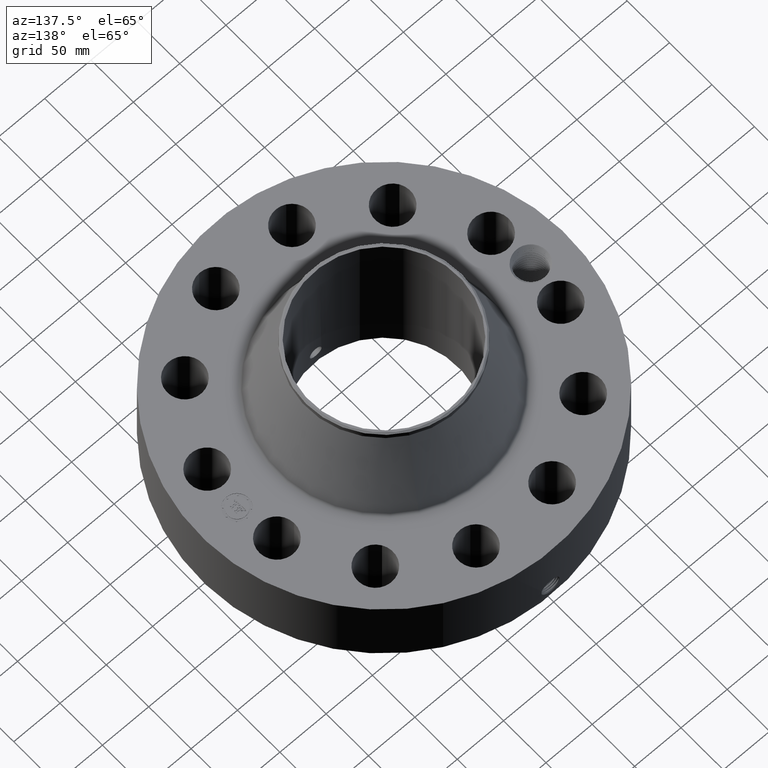
[diagram: clean part render]
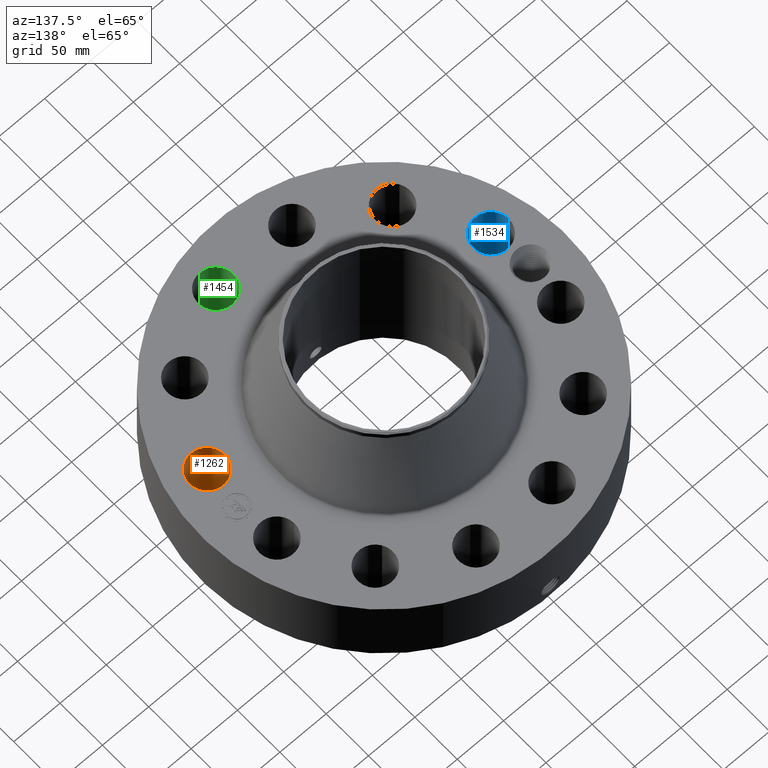
[diagram: same view with three faces highlighted in distinct colors, each labeled with its STEP entity id]
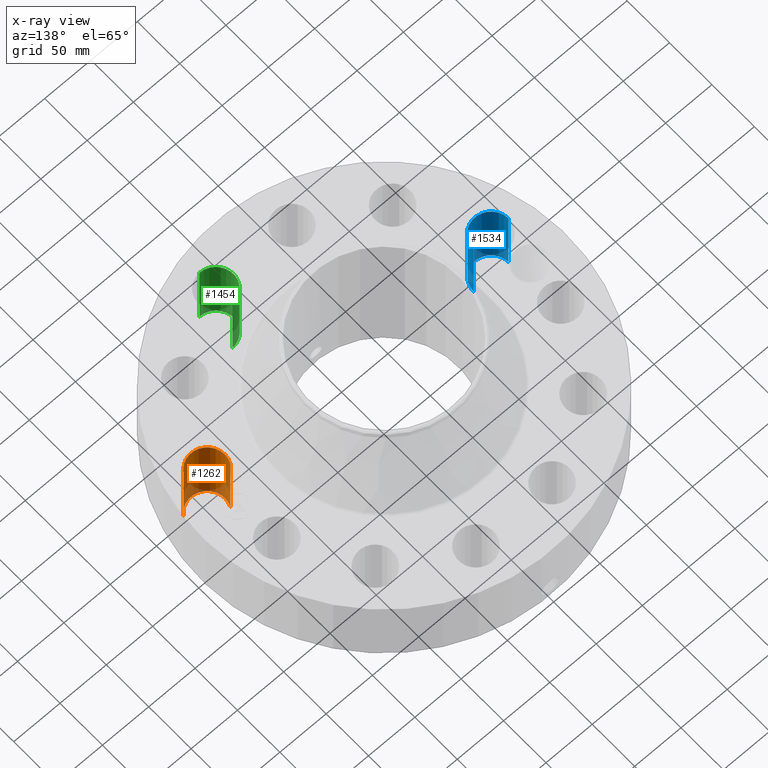
[diagram: x-ray of the same camera — body ghosted, the three highlighted faces saturated]
A machine part, auxiliary view with three faces highlighted in distinct colors.
The next image is the same camera in x-ray (body ghosted, the three faces saturated) — at least one of them is partly hidden behind the body in this view.
Their STEP definitions:

[orange] entity #1262 — the highlighted cylindrical surface (edge-blend (fillet) strip) has radius 19.05 mm, axis along (0, -0, -1).
#235=AXIS2_PLACEMENT_3D('Circle Axis2P3D',#233,#234,$) ;
#633=AXIS2_PLACEMENT_3D('Circle Axis2P3D',#631,#632,$) ;
#1244=AXIS2_PLACEMENT_3D('Cylinder Axis2P3D',#1241,#1242,#1243) ;
#233=CARTESIAN_POINT('Axis2P3D Location',(6.03703641433,-1.6176190319,0.250000000001)) ;
#237=CARTESIAN_POINT('Vertex',(6.69522333575,-1.97718818585,0.250000000001)) ;
#239=CARTESIAN_POINT('Vertex',(5.37884949291,-1.25804987794,0.250000000001)) ;
#626=CARTESIAN_POINT('Vertex',(5.37884949291,-1.25804987794,3.50000000001)) ;
#628=CARTESIAN_POINT('Vertex',(6.69522333575,-1.97718818585,3.50000000001)) ;
#631=CARTESIAN_POINT('Axis2P3D Location',(6.03703641433,-1.6176190319,3.50000000001)) ;
#1241=CARTESIAN_POINT('Axis2P3D Location',(6.03703641433,-1.6176190319,3.49606299214)) ;
#1246=CARTESIAN_POINT('Line Origine',(6.69522333575,-1.97718818585,1.87500000001)) ;
#1251=CARTESIAN_POINT('Line Origine',(5.37884949291,-1.25804987794,1.87500000001)) ;
#234=DIRECTION('Axis2P3D Direction',(0.,0.,-0.0393700787402)) ;
#632=DIRECTION('Axis2P3D Direction',(0.,0.,-0.0393700787402)) ;
#1242=DIRECTION('Axis2P3D Direction',(0.,-0.,-0.0393700787402)) ;
#1243=DIRECTION('Axis2P3D XDirection',(-0.0345504945626,0.0188750212049,0.)) ;
#1247=DIRECTION('Vector Direction',(0.,0.,-0.0393700787402)) ;
#1252=DIRECTION('Vector Direction',(0.,0.,-0.0393700787402)) ;
#1248=VECTOR('Line Direction',#1247,0.0393700787402) ;
#1253=VECTOR('Line Direction',#1252,0.0393700787402) ;
#1257=ORIENTED_EDGE('',*,*,#1250,.F.) ;
#1258=ORIENTED_EDGE('',*,*,#241,.T.) ;
#1259=ORIENTED_EDGE('',*,*,#1255,.T.) ;
#1260=ORIENTED_EDGE('',*,*,#635,.F.) ;
#1262=ADVANCED_FACE('PartBody',(#1261),#1245,.F.) ;
#236=CIRCLE('generated circle',#235,0.750000000003) ;
#634=CIRCLE('generated circle',#633,0.750000000003) ;
#1245=CYLINDRICAL_SURFACE('generated cylinder',#1244,0.750000000003) ;
#241=EDGE_CURVE('',#238,#240,#236,.T.) ;
#635=EDGE_CURVE('',#629,#627,#634,.T.) ;
#1250=EDGE_CURVE('',#238,#629,#1249,.F.) ;
#1255=EDGE_CURVE('',#240,#627,#1254,.F.) ;
#1256=EDGE_LOOP('',(#1257,#1258,#1259,#1260)) ;
#1261=FACE_OUTER_BOUND('',#1256,.T.) ;
#1249=LINE('Line',#1246,#1248) ;
#1254=LINE('Line',#1251,#1253) ;
#238=VERTEX_POINT('',#237) ;
#240=VERTEX_POINT('',#239) ;
#627=VERTEX_POINT('',#626) ;
#629=VERTEX_POINT('',#628) ;

[blue] entity #1534 — the highlighted cylindrical surface (edge-blend (fillet) strip) has radius 19.05 mm, axis along (-0, 0, -1).
#343=AXIS2_PLACEMENT_3D('Circle Axis2P3D',#341,#342,$) ;
#741=AXIS2_PLACEMENT_3D('Circle Axis2P3D',#739,#740,$) ;
#1516=AXIS2_PLACEMENT_3D('Cylinder Axis2P3D',#1513,#1514,#1515) ;
#341=CARTESIAN_POINT('Axis2P3D Location',(-6.03703641433,-1.6176190319,0.250000000001)) ;
#345=CARTESIAN_POINT('Vertex',(-5.28724524296,-1.59992159293,0.250000000001)) ;
#347=CARTESIAN_POINT('Vertex',(-6.7868275857,-1.63531647087,0.250000000001)) ;
#734=CARTESIAN_POINT('Vertex',(-6.7868275857,-1.63531647087,3.50000000001)) ;
#736=CARTESIAN_POINT('Vertex',(-5.28724524296,-1.59992159293,3.50000000001)) ;
#739=CARTESIAN_POINT('Axis2P3D Location',(-6.03703641433,-1.6176190319,3.50000000001)) ;
#1513=CARTESIAN_POINT('Axis2P3D Location',(-6.03703641433,-1.6176190319,3.49606299214)) ;
#1518=CARTESIAN_POINT('Line Origine',(-5.28724524296,-1.59992159293,1.87500000001)) ;
#1523=CARTESIAN_POINT('Line Origine',(-6.7868275857,-1.63531647087,1.87500000001)) ;
#342=DIRECTION('Axis2P3D Direction',(0.,0.,-0.0393700787402)) ;
#740=DIRECTION('Axis2P3D Direction',(0.,0.,-0.0393700787402)) ;
#1514=DIRECTION('Axis2P3D Direction',(-0.,0.,-0.0393700787402)) ;
#1515=DIRECTION('Axis2P3D XDirection',(-0.039359116607,-0.000928999420902,0.)) ;
#1519=DIRECTION('Vector Direction',(0.,0.,-0.0393700787402)) ;
#1524=DIRECTION('Vector Direction',(0.,0.,-0.0393700787402)) ;
#1520=VECTOR('Line Direction',#1519,0.0393700787402) ;
#1525=VECTOR('Line Direction',#1524,0.0393700787402) ;
#1529=ORIENTED_EDGE('',*,*,#1522,.F.) ;
#1530=ORIENTED_EDGE('',*,*,#349,.T.) ;
#1531=ORIENTED_EDGE('',*,*,#1527,.T.) ;
#1532=ORIENTED_EDGE('',*,*,#743,.F.) ;
#1534=ADVANCED_FACE('PartBody',(#1533),#1517,.F.) ;
#344=CIRCLE('generated circle',#343,0.750000000003) ;
#742=CIRCLE('generated circle',#741,0.750000000003) ;
#1517=CYLINDRICAL_SURFACE('generated cylinder',#1516,0.750000000003) ;
#349=EDGE_CURVE('',#346,#348,#344,.T.) ;
#743=EDGE_CURVE('',#737,#735,#742,.T.) ;
#1522=EDGE_CURVE('',#346,#737,#1521,.F.) ;
#1527=EDGE_CURVE('',#348,#735,#1526,.F.) ;
#1528=EDGE_LOOP('',(#1529,#1530,#1531,#1532)) ;
#1533=FACE_OUTER_BOUND('',#1528,.T.) ;
#1521=LINE('Line',#1518,#1520) ;
#1526=LINE('Line',#1523,#1525) ;
#346=VERTEX_POINT('',#345) ;
#348=VERTEX_POINT('',#347) ;
#735=VERTEX_POINT('',#734) ;
#737=VERTEX_POINT('',#736) ;

[green] entity #1454 — the highlighted cylindrical surface (edge-blend (fillet) strip) has radius 19.05 mm, axis along (0, -0, -1).
#298=AXIS2_PLACEMENT_3D('Circle Axis2P3D',#296,#297,$) ;
#678=AXIS2_PLACEMENT_3D('Circle Axis2P3D',#676,#677,$) ;
#1429=AXIS2_PLACEMENT_3D('Cylinder Axis2P3D',#1426,#1427,#1428) ;
#291=CARTESIAN_POINT('Vertex',(1.59992159293,-5.28724524296,0.250000000001)) ;
#293=CARTESIAN_POINT('Vertex',(1.63531647087,-6.7868275857,0.250000000001)) ;
#296=CARTESIAN_POINT('Axis2P3D Location',(1.6176190319,-6.03703641433,0.250000000001)) ;
#676=CARTESIAN_POINT('Axis2P3D Location',(1.6176190319,-6.03703641433,3.50000000001)) ;
#680=CARTESIAN_POINT('Vertex',(1.63531647087,-6.7868275857,3.50000000001)) ;
#682=CARTESIAN_POINT('Vertex',(1.59992159293,-5.28724524296,3.50000000001)) ;
#1426=CARTESIAN_POINT('Axis2P3D Location',(1.6176190319,-6.03703641433,3.49606299214)) ;
#1431=CARTESIAN_POINT('Line Origine',(1.59992159293,-5.28724524296,1.87500000001)) ;
#1436=CARTESIAN_POINT('Line Origine',(1.63531647087,-6.7868275857,1.87500000001)) ;
#297=DIRECTION('Axis2P3D Direction',(0.,0.,-0.0393700787402)) ;
#677=DIRECTION('Axis2P3D Direction',(0.,0.,-0.0393700787402)) ;
#1427=DIRECTION('Axis2P3D Direction',(0.,-0.,-0.0393700787402)) ;
#1428=DIRECTION('Axis2P3D XDirection',(0.000928999420902,-0.039359116607,0.)) ;
#1432=DIRECTION('Vector Direction',(0.,0.,-0.0393700787402)) ;
#1437=DIRECTION('Vector Direction',(0.,0.,-0.0393700787402)) ;
#1433=VECTOR('Line Direction',#1432,0.0393700787402) ;
#1438=VECTOR('Line Direction',#1437,0.0393700787402) ;
#1449=ORIENTED_EDGE('',*,*,#1440,.F.) ;
#1450=ORIENTED_EDGE('',*,*,#300,.T.) ;
#1451=ORIENTED_EDGE('',*,*,#1435,.T.) ;
#1452=ORIENTED_EDGE('',*,*,#684,.F.) ;
#1454=ADVANCED_FACE('PartBody',(#1453),#1430,.F.) ;
#299=CIRCLE('generated circle',#298,0.750000000003) ;
#679=CIRCLE('generated circle',#678,0.750000000003) ;
#1430=CYLINDRICAL_SURFACE('generated cylinder',#1429,0.750000000003) ;
#300=EDGE_CURVE('',#294,#292,#299,.T.) ;
#684=EDGE_CURVE('',#681,#683,#679,.T.) ;
#1435=EDGE_CURVE('',#292,#683,#1434,.F.) ;
#1440=EDGE_CURVE('',#294,#681,#1439,.F.) ;
#1448=EDGE_LOOP('',(#1449,#1450,#1451,#1452)) ;
#1453=FACE_OUTER_BOUND('',#1448,.T.) ;
#1434=LINE('Line',#1431,#1433) ;
#1439=LINE('Line',#1436,#1438) ;
#292=VERTEX_POINT('',#291) ;
#294=VERTEX_POINT('',#293) ;
#681=VERTEX_POINT('',#680) ;
#683=VERTEX_POINT('',#682) ;